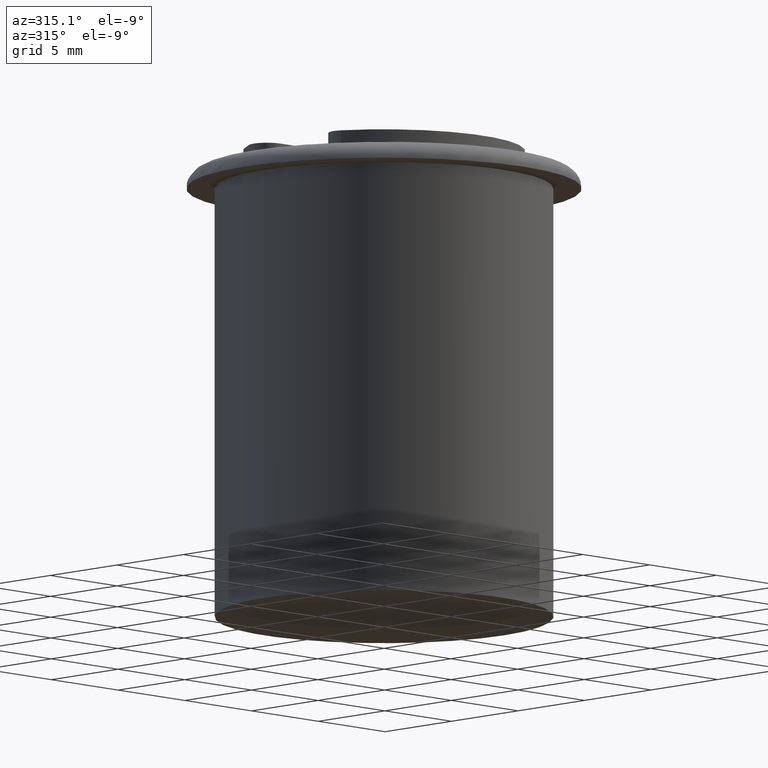
[diagram: clean part render]
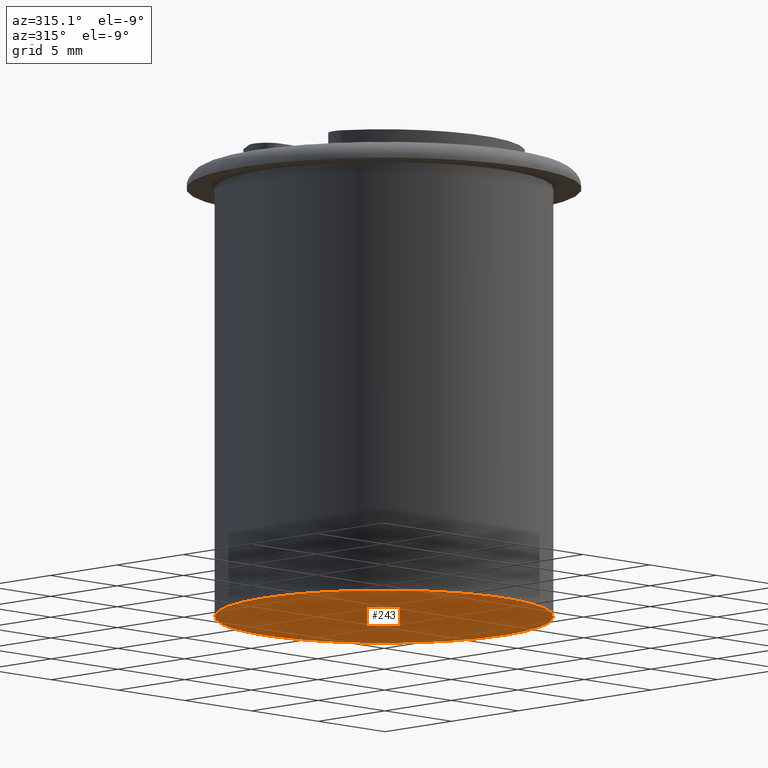
[diagram: same view with one face highlighted and labeled with its STEP entity id]
A machine part, auxiliary view. The second image highlights one B-rep face of the part: STEP entity #243.
In plain terms, the highlighted planar face has unit normal (0, 0, 1).
Its self-contained STEP definition (entity closure, byte-faithful):
#26=PLANE('',#276);
#41=FACE_OUTER_BOUND('',#61,.T.);
#61=EDGE_LOOP('',(#205));
#101=CIRCLE('',#274,9.);
#121=VERTEX_POINT('',#413);
#149=EDGE_CURVE('',#121,#121,#101,.T.);
#205=ORIENTED_EDGE('',*,*,#149,.T.);
#243=ADVANCED_FACE('',(#41),#26,.F.);
#274=AXIS2_PLACEMENT_3D('',#414,#347,#348);
#276=AXIS2_PLACEMENT_3D('',#416,#351,#352);
#347=DIRECTION('center_axis',(0.,0.,-1.));
#348=DIRECTION('ref_axis',(1.,0.,0.));
#351=DIRECTION('center_axis',(0.,0.,1.));
#352=DIRECTION('ref_axis',(1.,0.,0.));
#413=CARTESIAN_POINT('',(-9.,1.10218211923262E-15,0.));
#414=CARTESIAN_POINT('Origin',(0.,0.,0.));
#416=CARTESIAN_POINT('Origin',(-4.5960834877465E-16,1.76225876924628E-16,
0.));